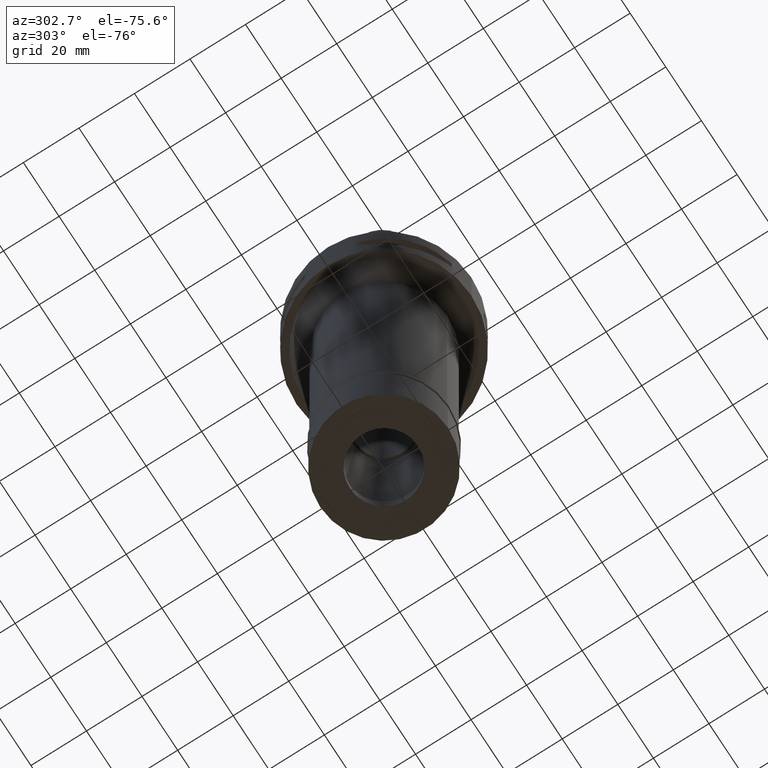
[diagram: clean part render]
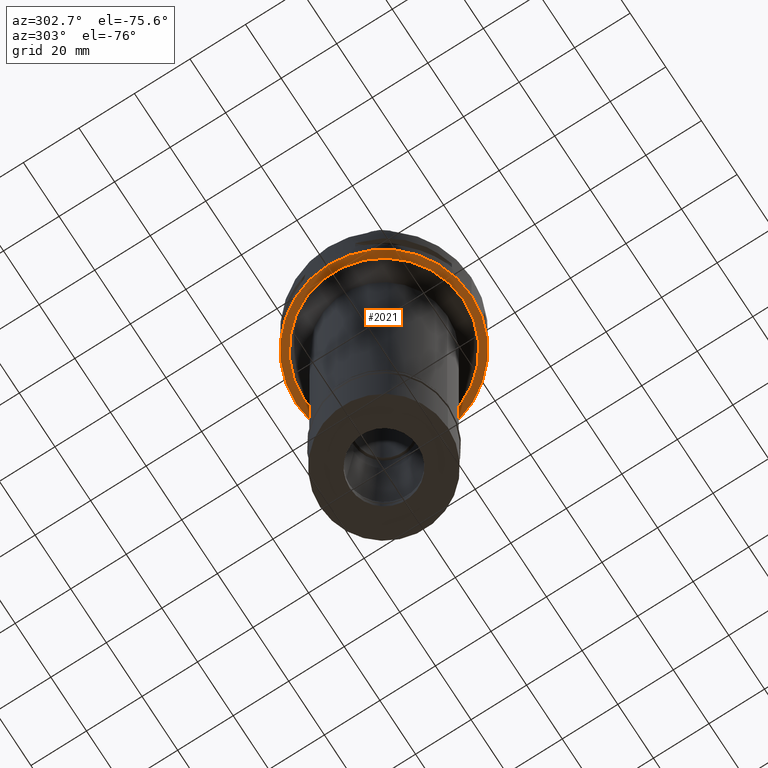
[diagram: same view with one face highlighted and labeled with its STEP entity id]
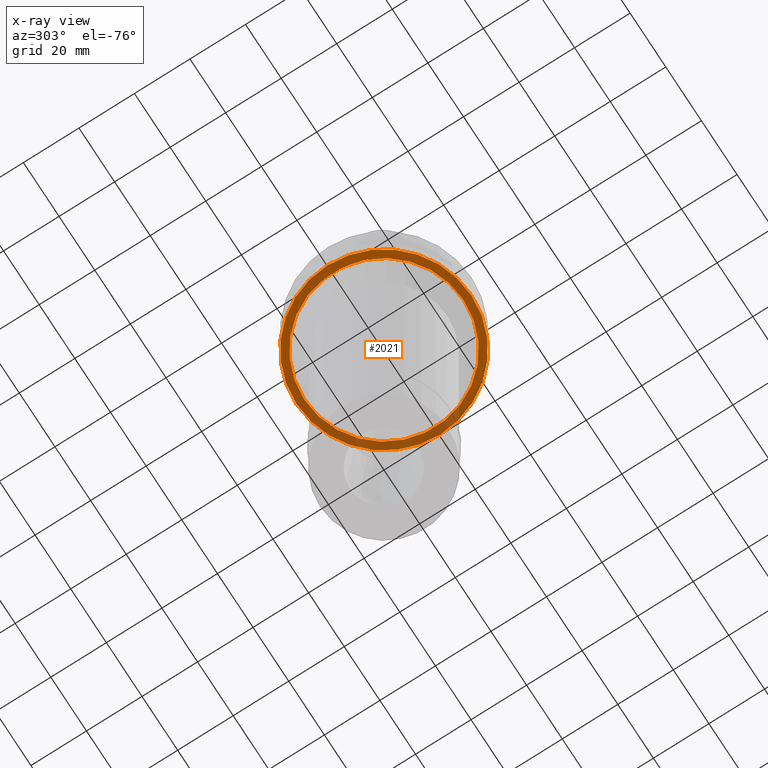
[diagram: x-ray of the same camera — body ghosted, the highlighted face saturated]
A machine part, auxiliary view. The second image highlights one B-rep face of the part: STEP entity #2021.
The next image is the same camera in x-ray: the body ghosted, the highlighted face saturated — about 27% of this face is hidden behind the body in this view.
In plain terms, the highlighted planar face has unit normal (0, 0, -1).
Its self-contained STEP definition (entity closure, byte-faithful):
#17 = CIRCLE ( 'NONE', #1768, 31.50000000000000000 ) ;
#75 = DIRECTION ( 'NONE',  ( 0.0000000000000000000, 0.0000000000000000000, 1.000000000000000000 ) ) ;
#315 = DIRECTION ( 'NONE',  ( 0.0000000000000000000, 0.0000000000000000000, -1.000000000000000000 ) ) ;
#592 = EDGE_CURVE ( 'NONE', #1357, #3775, #17, .T. ) ;
#597 = DIRECTION ( 'NONE',  ( 0.0000000000000000000, 0.0000000000000000000, 1.000000000000000000 ) ) ;
#880 = ORIENTED_EDGE ( 'NONE', *, *, #3164, .F. ) ;
#1018 = CARTESIAN_POINT ( 'NONE',  ( 0.0000000000000000000, 0.0000000000000000000, -22.00000000000000000 ) ) ;
#1037 = AXIS2_PLACEMENT_3D ( 'NONE', #4179, #597, #2902 ) ;
#1242 = DIRECTION ( 'NONE',  ( 0.0000000000000000000, -1.000000000000000000, 0.0000000000000000000 ) ) ;
#1357 = VERTEX_POINT ( 'NONE', #1650 ) ;
#1422 = VERTEX_POINT ( 'NONE', #3656 ) ;
#1445 = AXIS2_PLACEMENT_3D ( 'NONE', #1018, #1749, #3380 ) ;
#1650 = CARTESIAN_POINT ( 'NONE',  ( 0.0000000000000000000, -31.50000000000000000, -22.00000000000000000 ) ) ;
#1749 = DIRECTION ( 'NONE',  ( 0.0000000000000000000, 0.0000000000000000000, -1.000000000000000000 ) ) ;
#1768 = AXIS2_PLACEMENT_3D ( 'NONE', #3573, #75, #4363 ) ;
#1858 = DIRECTION ( 'NONE',  ( 0.0000000000000000000, 1.000000000000000000, 0.0000000000000000000 ) ) ;
#1960 = ORIENTED_EDGE ( 'NONE', *, *, #3116, .F. ) ;
#1974 = FACE_OUTER_BOUND ( 'NONE', #2958, .T. ) ;
#2021 = ADVANCED_FACE ( 'NONE', ( #1974, #4654 ), #3894, .T. ) ;
#2048 = CARTESIAN_POINT ( 'NONE',  ( 0.0000000000000000000, 0.0000000000000000000, -22.00000000000000000 ) ) ;
#2275 = CARTESIAN_POINT ( 'NONE',  ( 0.0000000000000000000, 28.75000000000000000, -22.00000000000000000 ) ) ;
#2416 = AXIS2_PLACEMENT_3D ( 'NONE', #3745, #315, #1858 ) ;
#2444 = CARTESIAN_POINT ( 'NONE',  ( 0.0000000000000000000, 31.50000000000000000, -22.00000000000000000 ) ) ;
#2784 = ORIENTED_EDGE ( 'NONE', *, *, #592, .F. ) ;
#2880 = CIRCLE ( 'NONE', #1445, 28.75000000000000000 ) ;
#2902 = DIRECTION ( 'NONE',  ( 0.0000000000000000000, 1.000000000000000000, 0.0000000000000000000 ) ) ;
#2958 = EDGE_LOOP ( 'NONE', ( #1960, #2784 ) ) ;
#3116 = EDGE_CURVE ( 'NONE', #3775, #1357, #3587, .T. ) ;
#3118 = VERTEX_POINT ( 'NONE', #2275 ) ;
#3164 = EDGE_CURVE ( 'NONE', #1422, #3118, #2880, .T. ) ;
#3380 = DIRECTION ( 'NONE',  ( 0.0000000000000000000, -1.000000000000000000, 0.0000000000000000000 ) ) ;
#3476 = EDGE_CURVE ( 'NONE', #3118, #1422, #4166, .T. ) ;
#3490 = DIRECTION ( 'NONE',  ( 0.0000000000000000000, 0.0000000000000000000, -1.000000000000000000 ) ) ;
#3573 = CARTESIAN_POINT ( 'NONE',  ( 0.0000000000000000000, 0.0000000000000000000, -22.00000000000000000 ) ) ;
#3587 = CIRCLE ( 'NONE', #1037, 31.50000000000000000 ) ;
#3656 = CARTESIAN_POINT ( 'NONE',  ( 0.0000000000000000000, -28.75000000000000000, -22.00000000000000000 ) ) ;
#3745 = CARTESIAN_POINT ( 'NONE',  ( 0.0000000000000000000, 0.0000000000000000000, -22.00000000000000000 ) ) ;
#3775 = VERTEX_POINT ( 'NONE', #2444 ) ;
#3894 = PLANE ( 'NONE',  #4336 ) ;
#4128 = ORIENTED_EDGE ( 'NONE', *, *, #3476, .F. ) ;
#4166 = CIRCLE ( 'NONE', #2416, 28.75000000000000000 ) ;
#4179 = CARTESIAN_POINT ( 'NONE',  ( 0.0000000000000000000, 0.0000000000000000000, -22.00000000000000000 ) ) ;
#4336 = AXIS2_PLACEMENT_3D ( 'NONE', #2048, #3490, #1242 ) ;
#4363 = DIRECTION ( 'NONE',  ( 0.0000000000000000000, -1.000000000000000000, 0.0000000000000000000 ) ) ;
#4400 = EDGE_LOOP ( 'NONE', ( #4128, #880 ) ) ;
#4654 = FACE_BOUND ( 'NONE', #4400, .T. ) ;